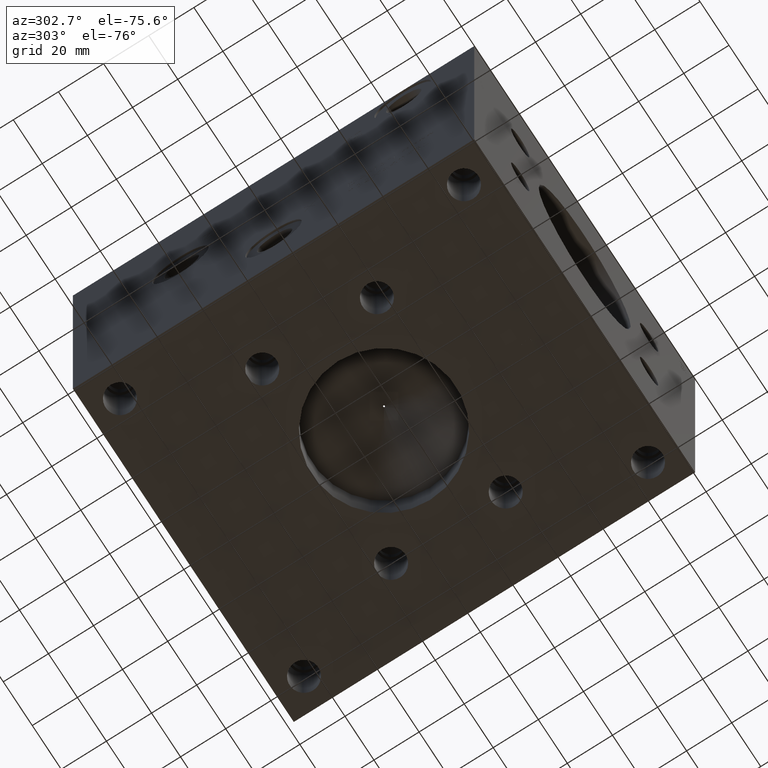
[diagram: clean part render]
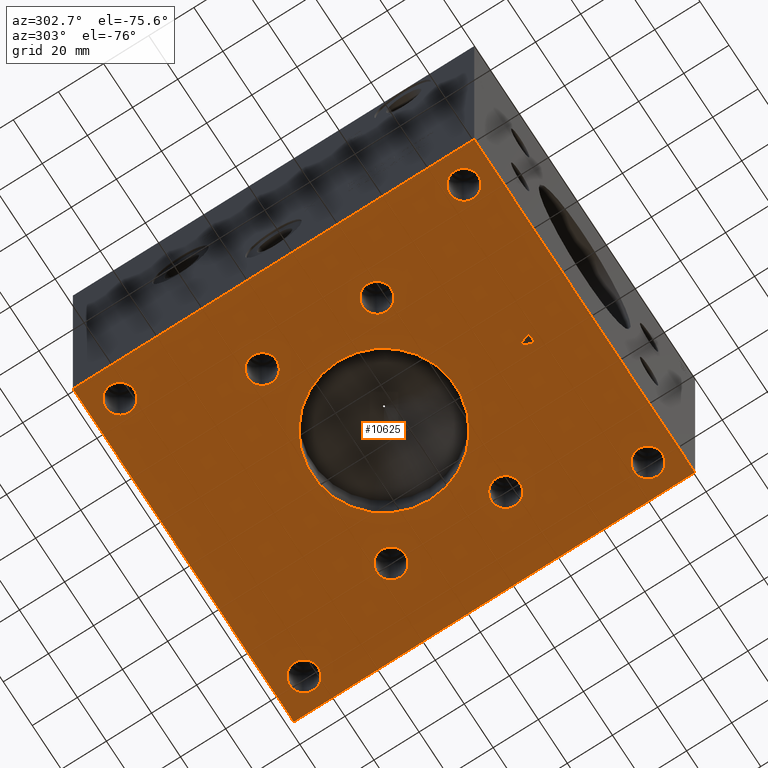
[diagram: same view with one face highlighted and labeled with its STEP entity id]
A machine part, auxiliary view. The second image highlights one B-rep face of the part: STEP entity #10625.
In plain terms, the highlighted planar face has unit normal (0, 0, 1).
Its self-contained STEP definition (entity closure, byte-faithful):
#410=CIRCLE('',#11209,6.35);
#411=CIRCLE('',#11210,6.35);
#412=CIRCLE('',#11211,6.35);
#413=CIRCLE('',#11212,6.35);
#414=CIRCLE('',#11213,6.35);
#415=CIRCLE('',#11214,6.35);
#416=CIRCLE('',#11215,6.35);
#417=CIRCLE('',#11216,6.35);
#418=CIRCLE('',#11217,31.75);
#419=CIRCLE('',#11218,31.75);
#420=CIRCLE('',#11219,6.35);
#421=CIRCLE('',#11220,6.35);
#422=CIRCLE('',#11221,6.35);
#423=CIRCLE('',#11222,6.35);
#424=CIRCLE('',#11223,6.35);
#425=CIRCLE('',#11224,6.35);
#426=CIRCLE('',#11225,6.35);
#427=CIRCLE('',#11226,6.35);
#664=FACE_BOUND('',#1342,.T.);
#665=FACE_BOUND('',#1343,.T.);
#666=FACE_BOUND('',#1344,.T.);
#667=FACE_BOUND('',#1345,.T.);
#668=FACE_BOUND('',#1346,.T.);
#669=FACE_BOUND('',#1347,.T.);
#670=FACE_BOUND('',#1348,.T.);
#671=FACE_BOUND('',#1349,.T.);
#672=FACE_BOUND('',#1350,.T.);
#673=FACE_BOUND('',#1351,.T.);
#771=FACE_OUTER_BOUND('',#1341,.T.);
#1341=EDGE_LOOP('',(#6821,#6822,#6823,#6824));
#1342=EDGE_LOOP('',(#6825,#6826));
#1343=EDGE_LOOP('',(#6827,#6828));
#1344=EDGE_LOOP('',(#6829,#6830));
#1345=EDGE_LOOP('',(#6831,#6832));
#1346=EDGE_LOOP('',(#6833,#6834));
#1347=EDGE_LOOP('',(#6835,#6836));
#1348=EDGE_LOOP('',(#6837,#6838));
#1349=EDGE_LOOP('',(#6839,#6840));
#1350=EDGE_LOOP('',(#6841,#6842));
#1351=EDGE_LOOP('',(#6843,#6844,#6845,#6846,#6847,#6848,#6849,#6850));
#2002=LINE('',#14487,#3091);
#2006=LINE('',#14495,#3095);
#2009=LINE('',#14501,#3098);
#2012=LINE('',#14507,#3101);
#2015=LINE('',#14513,#3104);
#2018=LINE('',#14519,#3107);
#2021=LINE('',#14525,#3110);
#2024=LINE('',#14530,#3113);
#2026=LINE('',#14536,#3115);
#2027=LINE('',#14538,#3116);
#2028=LINE('',#14540,#3117);
#2029=LINE('',#14541,#3118);
#3091=VECTOR('',#11941,10.);
#3095=VECTOR('',#11947,10.);
#3098=VECTOR('',#11952,10.);
#3101=VECTOR('',#11957,10.);
#3104=VECTOR('',#11962,10.);
#3107=VECTOR('',#11967,10.);
#3110=VECTOR('',#11972,10.);
#3113=VECTOR('',#11977,10.);
#3115=VECTOR('',#11983,10.);
#3116=VECTOR('',#11984,10.);
#3117=VECTOR('',#11985,10.);
#3118=VECTOR('',#11986,10.);
#4177=VERTEX_POINT('',#14485);
#4178=VERTEX_POINT('',#14486);
#4181=VERTEX_POINT('',#14494);
#4183=VERTEX_POINT('',#14500);
#4185=VERTEX_POINT('',#14506);
#4187=VERTEX_POINT('',#14512);
#4189=VERTEX_POINT('',#14518);
#4191=VERTEX_POINT('',#14524);
#4193=VERTEX_POINT('',#14534);
#4194=VERTEX_POINT('',#14535);
#4195=VERTEX_POINT('',#14537);
#4196=VERTEX_POINT('',#14539);
#4197=VERTEX_POINT('',#14542);
#4198=VERTEX_POINT('',#14543);
#4199=VERTEX_POINT('',#14546);
#4200=VERTEX_POINT('',#14547);
#4201=VERTEX_POINT('',#14550);
#4202=VERTEX_POINT('',#14551);
#4203=VERTEX_POINT('',#14554);
#4204=VERTEX_POINT('',#14555);
#4205=VERTEX_POINT('',#14558);
#4206=VERTEX_POINT('',#14559);
#4207=VERTEX_POINT('',#14562);
#4208=VERTEX_POINT('',#14563);
#4209=VERTEX_POINT('',#14566);
#4210=VERTEX_POINT('',#14567);
#4211=VERTEX_POINT('',#14570);
#4212=VERTEX_POINT('',#14571);
#4213=VERTEX_POINT('',#14574);
#4214=VERTEX_POINT('',#14575);
#5241=EDGE_CURVE('',#4177,#4178,#2002,.T.);
#5245=EDGE_CURVE('',#4181,#4177,#2006,.T.);
#5248=EDGE_CURVE('',#4183,#4181,#2009,.T.);
#5251=EDGE_CURVE('',#4185,#4183,#2012,.T.);
#5254=EDGE_CURVE('',#4187,#4185,#2015,.T.);
#5257=EDGE_CURVE('',#4189,#4187,#2018,.T.);
#5260=EDGE_CURVE('',#4191,#4189,#2021,.T.);
#5263=EDGE_CURVE('',#4178,#4191,#2024,.T.);
#5265=EDGE_CURVE('',#4193,#4194,#2026,.T.);
#5266=EDGE_CURVE('',#4195,#4193,#2027,.T.);
#5267=EDGE_CURVE('',#4196,#4195,#2028,.T.);
#5268=EDGE_CURVE('',#4194,#4196,#2029,.T.);
#5269=EDGE_CURVE('',#4197,#4198,#410,.T.);
#5270=EDGE_CURVE('',#4198,#4197,#411,.T.);
#5271=EDGE_CURVE('',#4199,#4200,#412,.T.);
#5272=EDGE_CURVE('',#4200,#4199,#413,.T.);
#5273=EDGE_CURVE('',#4201,#4202,#414,.T.);
#5274=EDGE_CURVE('',#4202,#4201,#415,.T.);
#5275=EDGE_CURVE('',#4203,#4204,#416,.T.);
#5276=EDGE_CURVE('',#4204,#4203,#417,.T.);
#5277=EDGE_CURVE('',#4205,#4206,#418,.T.);
#5278=EDGE_CURVE('',#4206,#4205,#419,.T.);
#5279=EDGE_CURVE('',#4207,#4208,#420,.T.);
#5280=EDGE_CURVE('',#4208,#4207,#421,.T.);
#5281=EDGE_CURVE('',#4209,#4210,#422,.T.);
#5282=EDGE_CURVE('',#4210,#4209,#423,.T.);
#5283=EDGE_CURVE('',#4211,#4212,#424,.T.);
#5284=EDGE_CURVE('',#4212,#4211,#425,.T.);
#5285=EDGE_CURVE('',#4213,#4214,#426,.T.);
#5286=EDGE_CURVE('',#4214,#4213,#427,.T.);
#6821=ORIENTED_EDGE('',*,*,#5265,.F.);
#6822=ORIENTED_EDGE('',*,*,#5266,.F.);
#6823=ORIENTED_EDGE('',*,*,#5267,.F.);
#6824=ORIENTED_EDGE('',*,*,#5268,.F.);
#6825=ORIENTED_EDGE('',*,*,#5269,.T.);
#6826=ORIENTED_EDGE('',*,*,#5270,.T.);
#6827=ORIENTED_EDGE('',*,*,#5271,.T.);
#6828=ORIENTED_EDGE('',*,*,#5272,.T.);
#6829=ORIENTED_EDGE('',*,*,#5273,.T.);
#6830=ORIENTED_EDGE('',*,*,#5274,.T.);
#6831=ORIENTED_EDGE('',*,*,#5275,.T.);
#6832=ORIENTED_EDGE('',*,*,#5276,.T.);
#6833=ORIENTED_EDGE('',*,*,#5277,.T.);
#6834=ORIENTED_EDGE('',*,*,#5278,.T.);
#6835=ORIENTED_EDGE('',*,*,#5279,.T.);
#6836=ORIENTED_EDGE('',*,*,#5280,.T.);
#6837=ORIENTED_EDGE('',*,*,#5281,.T.);
#6838=ORIENTED_EDGE('',*,*,#5282,.T.);
#6839=ORIENTED_EDGE('',*,*,#5283,.T.);
#6840=ORIENTED_EDGE('',*,*,#5284,.T.);
#6841=ORIENTED_EDGE('',*,*,#5285,.T.);
#6842=ORIENTED_EDGE('',*,*,#5286,.T.);
#6843=ORIENTED_EDGE('',*,*,#5241,.T.);
#6844=ORIENTED_EDGE('',*,*,#5263,.T.);
#6845=ORIENTED_EDGE('',*,*,#5260,.T.);
#6846=ORIENTED_EDGE('',*,*,#5257,.T.);
#6847=ORIENTED_EDGE('',*,*,#5254,.T.);
#6848=ORIENTED_EDGE('',*,*,#5251,.T.);
#6849=ORIENTED_EDGE('',*,*,#5248,.T.);
#6850=ORIENTED_EDGE('',*,*,#5245,.T.);
#9846=PLANE('',#11208);
#10625=ADVANCED_FACE('',(#771,#664,#665,#666,#667,#668,#669,#670,#671,#672,
#673),#9846,.F.);
#11208=AXIS2_PLACEMENT_3D('',#14533,#11981,#11982);
#11209=AXIS2_PLACEMENT_3D('',#14544,#11987,#11988);
#11210=AXIS2_PLACEMENT_3D('',#14545,#11989,#11990);
#11211=AXIS2_PLACEMENT_3D('',#14548,#11991,#11992);
#11212=AXIS2_PLACEMENT_3D('',#14549,#11993,#11994);
#11213=AXIS2_PLACEMENT_3D('',#14552,#11995,#11996);
#11214=AXIS2_PLACEMENT_3D('',#14553,#11997,#11998);
#11215=AXIS2_PLACEMENT_3D('',#14556,#11999,#12000);
#11216=AXIS2_PLACEMENT_3D('',#14557,#12001,#12002);
#11217=AXIS2_PLACEMENT_3D('',#14560,#12003,#12004);
#11218=AXIS2_PLACEMENT_3D('',#14561,#12005,#12006);
#11219=AXIS2_PLACEMENT_3D('',#14564,#12007,#12008);
#11220=AXIS2_PLACEMENT_3D('',#14565,#12009,#12010);
#11221=AXIS2_PLACEMENT_3D('',#14568,#12011,#12012);
#11222=AXIS2_PLACEMENT_3D('',#14569,#12013,#12014);
#11223=AXIS2_PLACEMENT_3D('',#14572,#12015,#12016);
#11224=AXIS2_PLACEMENT_3D('',#14573,#12017,#12018);
#11225=AXIS2_PLACEMENT_3D('',#14576,#12019,#12020);
#11226=AXIS2_PLACEMENT_3D('',#14577,#12021,#12022);
#11941=DIRECTION('',(1.,0.,0.));
#11947=DIRECTION('',(0.308774363938386,-0.95113531748876,0.));
#11952=DIRECTION('',(1.,0.,0.));
#11957=DIRECTION('',(0.308774363938366,0.951135317488767,0.));
#11962=DIRECTION('',(1.,0.,0.));
#11967=DIRECTION('',(-0.319451166674561,-0.947602739606773,0.));
#11972=DIRECTION('',(-1.,0.,0.));
#11977=DIRECTION('',(-0.31945116667457,0.94760273960677,0.));
#11981=DIRECTION('center_axis',(0.,0.,1.));
#11982=DIRECTION('ref_axis',(1.,0.,0.));
#11983=DIRECTION('',(1.,0.,0.));
#11984=DIRECTION('',(0.,-1.,0.));
#11985=DIRECTION('',(-1.,0.,0.));
#11986=DIRECTION('',(0.,1.,0.));
#11987=DIRECTION('center_axis',(0.,0.,1.));
#11988=DIRECTION('ref_axis',(1.,0.,0.));
#11989=DIRECTION('center_axis',(0.,0.,1.));
#11990=DIRECTION('ref_axis',(1.,0.,0.));
#11991=DIRECTION('center_axis',(0.,0.,1.));
#11992=DIRECTION('ref_axis',(1.,0.,0.));
#11993=DIRECTION('center_axis',(0.,0.,1.));
#11994=DIRECTION('ref_axis',(1.,0.,0.));
#11995=DIRECTION('center_axis',(0.,0.,1.));
#11996=DIRECTION('ref_axis',(1.,0.,0.));
#11997=DIRECTION('center_axis',(0.,0.,1.));
#11998=DIRECTION('ref_axis',(1.,0.,0.));
#11999=DIRECTION('center_axis',(0.,0.,1.));
#12000=DIRECTION('ref_axis',(1.,0.,0.));
#12001=DIRECTION('center_axis',(0.,0.,1.));
#12002=DIRECTION('ref_axis',(1.,0.,0.));
#12003=DIRECTION('center_axis',(0.,0.,1.));
#12004=DIRECTION('ref_axis',(1.,0.,0.));
#12005=DIRECTION('center_axis',(0.,0.,1.));
#12006=DIRECTION('ref_axis',(1.,0.,0.));
#12007=DIRECTION('center_axis',(0.,0.,1.));
#12008=DIRECTION('ref_axis',(1.,0.,0.));
#12009=DIRECTION('center_axis',(0.,0.,1.));
#12010=DIRECTION('ref_axis',(1.,0.,0.));
#12011=DIRECTION('center_axis',(0.,0.,1.));
#12012=DIRECTION('ref_axis',(1.,0.,0.));
#12013=DIRECTION('center_axis',(0.,0.,1.));
#12014=DIRECTION('ref_axis',(1.,0.,0.));
#12015=DIRECTION('center_axis',(0.,0.,1.));
#12016=DIRECTION('ref_axis',(1.,0.,0.));
#12017=DIRECTION('center_axis',(0.,0.,1.));
#12018=DIRECTION('ref_axis',(1.,0.,0.));
#12019=DIRECTION('center_axis',(0.,0.,1.));
#12020=DIRECTION('ref_axis',(1.,0.,0.));
#12021=DIRECTION('center_axis',(0.,0.,1.));
#12022=DIRECTION('ref_axis',(1.,0.,0.));
#14485=CARTESIAN_POINT('',(77.76820301059,21.43125,0.));
#14486=CARTESIAN_POINT('',(78.6224169361727,21.43125,0.));
#14487=CARTESIAN_POINT('',(76.984101505295,21.43125,0.));
#14494=CARTESIAN_POINT('',(77.1918659041728,23.2065741224459,0.));
#14495=CARTESIAN_POINT('',(67.4979564657387,53.0672773033361,0.));
#14500=CARTESIAN_POINT('',(74.7681625370075,23.2065741224459,0.));
#14501=CARTESIAN_POINT('',(75.4840812685038,23.2065741224459,0.));
#14506=CARTESIAN_POINT('',(74.1918254305903,21.43125,0.));
#14507=CARTESIAN_POINT('',(84.1948772201401,52.2442220303114,0.));
#14512=CARTESIAN_POINT('',(73.3015904358566,21.43125,0.));
#14513=CARTESIAN_POINT('',(74.7507952179283,21.43125,0.));
#14518=CARTESIAN_POINT('',(75.4422711168348,27.7812499046326,0.));
#14519=CARTESIAN_POINT('',(84.7316478810518,55.3367569407962,0.));
#14524=CARTESIAN_POINT('',(76.4817362551944,27.7812499046326,0.));
#14525=CARTESIAN_POINT('',(76.3408681275972,27.7812499046326,0.));
#14530=CARTESIAN_POINT('',(68.2869871287098,52.0897124577142,0.));
#14533=CARTESIAN_POINT('Origin',(76.2,88.9,0.));
#14534=CARTESIAN_POINT('',(0.,0.,0.));
#14535=CARTESIAN_POINT('',(152.4,0.,0.));
#14536=CARTESIAN_POINT('',(0.,0.,0.));
#14537=CARTESIAN_POINT('',(0.,177.8,0.));
#14538=CARTESIAN_POINT('',(0.,177.8,0.));
#14539=CARTESIAN_POINT('',(152.4,177.8,0.));
#14540=CARTESIAN_POINT('',(152.4,177.8,0.));
#14541=CARTESIAN_POINT('',(152.4,0.,0.));
#14542=CARTESIAN_POINT('',(19.05,165.1,0.));
#14543=CARTESIAN_POINT('',(6.35,165.1,-2.22044604925031E-15));
#14544=CARTESIAN_POINT('Origin',(12.7,165.1,0.));
#14545=CARTESIAN_POINT('Origin',(12.7,165.1,0.));
#14546=CARTESIAN_POINT('',(19.05,12.7,0.));
#14547=CARTESIAN_POINT('',(6.35,12.7,-2.22044604925031E-15));
#14548=CARTESIAN_POINT('Origin',(12.7,12.7,0.));
#14549=CARTESIAN_POINT('Origin',(12.7,12.7,0.));
#14550=CARTESIAN_POINT('',(146.05,12.7,0.));
#14551=CARTESIAN_POINT('',(133.35,12.7,-2.22044604925031E-15));
#14552=CARTESIAN_POINT('Origin',(139.7,12.7,0.));
#14553=CARTESIAN_POINT('Origin',(139.7,12.7,0.));
#14554=CARTESIAN_POINT('',(146.05,165.1,0.));
#14555=CARTESIAN_POINT('',(133.35,165.1,-2.22044604925031E-15));
#14556=CARTESIAN_POINT('Origin',(139.7,165.1,0.));
#14557=CARTESIAN_POINT('Origin',(139.7,165.1,0.));
#14558=CARTESIAN_POINT('',(107.95,88.9,0.));
#14559=CARTESIAN_POINT('',(44.45,88.9,0.));
#14560=CARTESIAN_POINT('Origin',(76.2,88.9,0.));
#14561=CARTESIAN_POINT('Origin',(76.2,88.9,0.));
#14562=CARTESIAN_POINT('',(126.9746,63.5,0.));
#14563=CARTESIAN_POINT('',(114.2746,63.5,2.22044604925031E-15));
#14564=CARTESIAN_POINT('Origin',(120.6246,63.5,0.));
#14565=CARTESIAN_POINT('Origin',(120.6246,63.5,0.));
#14566=CARTESIAN_POINT('',(38.1,114.3,0.));
#14567=CARTESIAN_POINT('',(25.4,114.3,2.22044604925031E-15));
#14568=CARTESIAN_POINT('Origin',(31.75,114.3,0.));
#14569=CARTESIAN_POINT('Origin',(31.75,114.3,0.));
#14570=CARTESIAN_POINT('',(127.,114.3,0.));
#14571=CARTESIAN_POINT('',(114.3,114.3,2.22044604925031E-15));
#14572=CARTESIAN_POINT('Origin',(120.65,114.3,0.));
#14573=CARTESIAN_POINT('Origin',(120.65,114.3,0.));
#14574=CARTESIAN_POINT('',(38.1,63.5,0.));
#14575=CARTESIAN_POINT('',(25.4,63.5,2.22044604925031E-15));
#14576=CARTESIAN_POINT('Origin',(31.75,63.5,0.));
#14577=CARTESIAN_POINT('Origin',(31.75,63.5,0.));